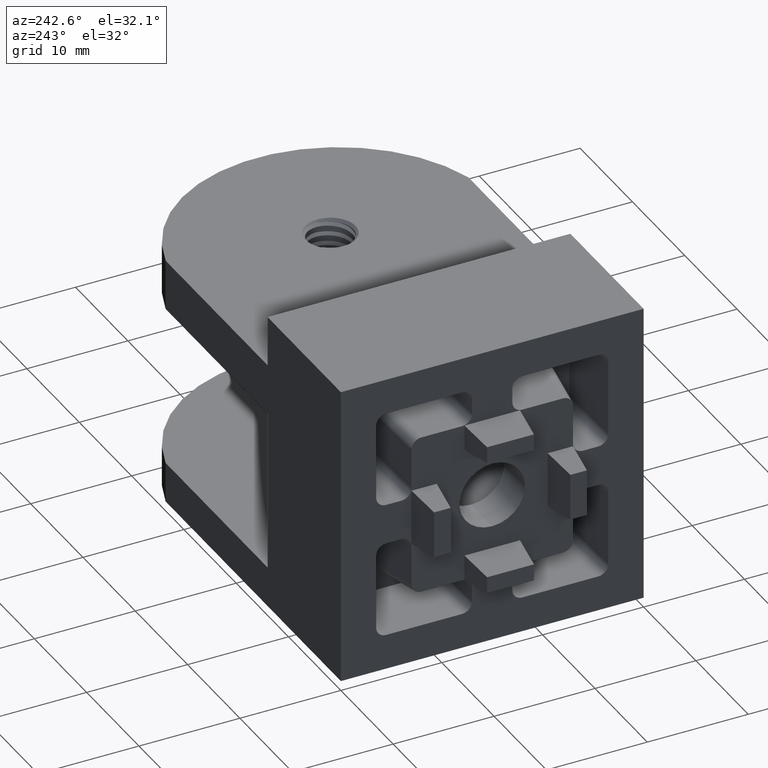
[diagram: clean part render]
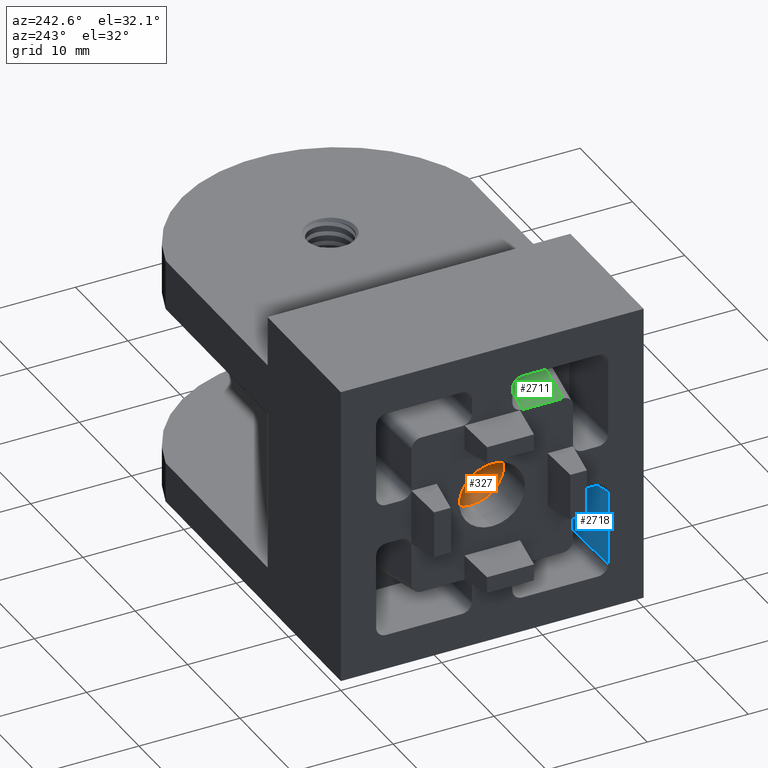
[diagram: same view with three faces highlighted in distinct colors, each labeled with its STEP entity id]
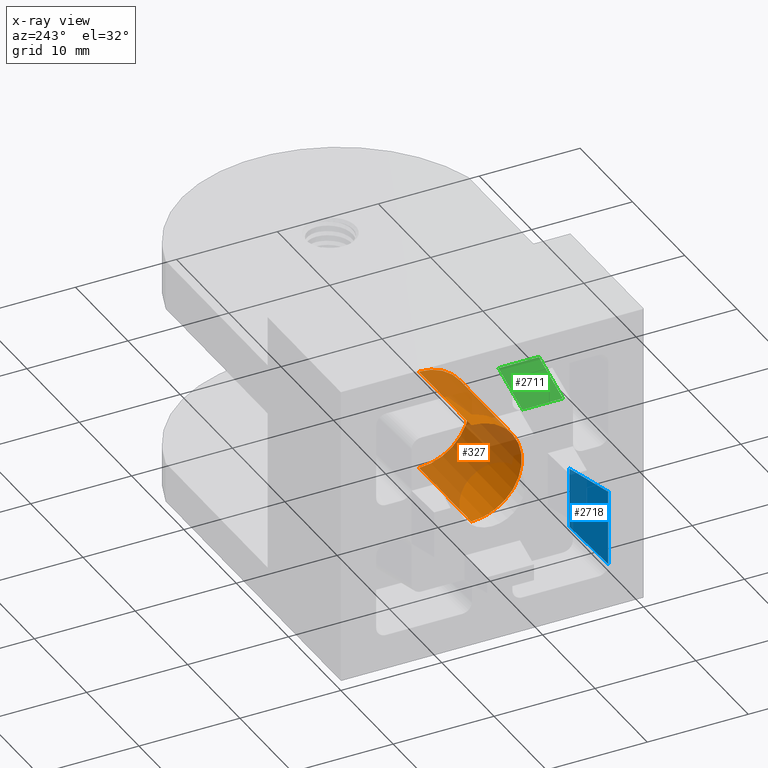
[diagram: x-ray of the same camera — body ghosted, the three highlighted faces saturated]
A machine part, auxiliary view with three faces highlighted in distinct colors.
The next image is the same camera in x-ray (body ghosted, the three faces saturated) — at least one of them is partly hidden behind the body in this view.
Their STEP definitions:

[orange] entity #327 — the highlighted cylindrical surface (partial cylindrical patch) has radius 5 mm, axis along (1, 0, 0).
#147 = VERTEX_POINT ( 'NONE', #3923 ) ;
#282 = EDGE_CURVE ( 'NONE', #1636, #147, #1318, .T. ) ;
#283 = EDGE_CURVE ( 'NONE', #1635, #1636, #1321, .T. ) ;
#285 = EDGE_CURVE ( 'NONE', #147, #1641, #1324, .T. ) ;
#286 = EDGE_CURVE ( 'NONE', #1635, #1641, #1323, .T. ) ;
#327 = ADVANCED_FACE ( 'NONE', ( #1385 ), #1386, .F. ) ;
#528 = CARTESIAN_POINT ( 'NONE',  ( 4.000000000000000000, 15.00000000000000000, -9.999999999999998200 ) ) ;
#529 = DIRECTION ( 'NONE',  ( 1.000000000000000000, 0.0000000000000000000, 0.0000000000000000000 ) ) ;
#530 = CARTESIAN_POINT ( 'NONE',  ( 4.000000000000000000, 15.00000000000000000, -15.00000000000000000 ) ) ;
#531 = DIRECTION ( 'NONE',  ( -1.000000000000000000, -0.0000000000000000000, -0.0000000000000000000 ) ) ;
#532 = DIRECTION ( 'NONE',  ( 0.0000000000000000000, 0.0000000000000000000, -1.000000000000000000 ) ) ;
#535 = CARTESIAN_POINT ( 'NONE',  ( 14.00000000000000000, 15.00000000000000000, -15.00000000000000000 ) ) ;
#536 = DIRECTION ( 'NONE',  ( 1.000000000000000000, 0.0000000000000000000, 0.0000000000000000000 ) ) ;
#537 = DIRECTION ( 'NONE',  ( 0.0000000000000000000, 0.0000000000000000000, -1.000000000000000000 ) ) ;
#538 = CARTESIAN_POINT ( 'NONE',  ( 4.000000000000000000, 15.00000000000000000, -20.00000000000000000 ) ) ;
#539 = DIRECTION ( 'NONE',  ( 1.000000000000000000, 0.0000000000000000000, 0.0000000000000000000 ) ) ;
#1318 = LINE ( 'NONE', #528, #1319 ) ;
#1319 = VECTOR ( 'NONE', #529, 1000.000000000000000 ) ;
#1321 = CIRCLE ( 'NONE', #1481, 5.000000000000000900 ) ;
#1323 = LINE ( 'NONE', #538, #1325 ) ;
#1324 = CIRCLE ( 'NONE', #1482, 5.000000000000000900 ) ;
#1325 = VECTOR ( 'NONE', #539, 1000.000000000000000 ) ;
#1385 = FACE_OUTER_BOUND ( 'NONE', #2354, .T. ) ;
#1386 = CYLINDRICAL_SURFACE ( 'NONE', #1515, 5.000000000000000900 ) ;
#1481 = AXIS2_PLACEMENT_3D ( 'NONE', #530, #531, #532 ) ;
#1482 = AXIS2_PLACEMENT_3D ( 'NONE', #535, #536, #537 ) ;
#1515 = AXIS2_PLACEMENT_3D ( 'NONE', #1995, #1996, #1997 ) ;
#1635 = VERTEX_POINT ( 'NONE', #3546 ) ;
#1636 = VERTEX_POINT ( 'NONE', #3547 ) ;
#1641 = VERTEX_POINT ( 'NONE', #3552 ) ;
#1995 = CARTESIAN_POINT ( 'NONE',  ( 4.000000000000000000, 15.00000000000000000, -15.00000000000000000 ) ) ;
#1996 = DIRECTION ( 'NONE',  ( 1.000000000000000000, 0.0000000000000000000, 0.0000000000000000000 ) ) ;
#1997 = DIRECTION ( 'NONE',  ( 0.0000000000000000000, 0.0000000000000000000, -1.000000000000000000 ) ) ;
#2354 = EDGE_LOOP ( 'NONE', ( #2478, #2475, #2472, #2479 ) ) ;
#2472 = ORIENTED_EDGE ( 'NONE', *, *, #285, .T. ) ;
#2475 = ORIENTED_EDGE ( 'NONE', *, *, #282, .T. ) ;
#2478 = ORIENTED_EDGE ( 'NONE', *, *, #283, .T. ) ;
#2479 = ORIENTED_EDGE ( 'NONE', *, *, #286, .F. ) ;
#3546 = CARTESIAN_POINT ( 'NONE',  ( 4.000000000000000000, 15.00000000000000000, -20.00000000000000000 ) ) ;
#3547 = CARTESIAN_POINT ( 'NONE',  ( 4.000000000000000000, 15.00000000000000000, -9.999999999999998200 ) ) ;
#3552 = CARTESIAN_POINT ( 'NONE',  ( 14.00000000000000000, 15.00000000000000000, -20.00000000000000000 ) ) ;
#3923 = CARTESIAN_POINT ( 'NONE',  ( 14.00000000000000000, 14.99999999897448300, -9.999999999999998200 ) ) ;

[blue] entity #2718 — the highlighted planar face has unit normal (0.1219, -0.9925, 0).
#73 = CARTESIAN_POINT ( 'NONE',  ( -0.08550942498617868100, 3.489500762877348400, -25.51795308598991600 ) ) ;
#74 = DIRECTION ( 'NONE',  ( 0.9852565360153691100, 0.1209742911510452000, 0.1209742911510454100 ) ) ;
#89 = CARTESIAN_POINT ( 'NONE',  ( -0.08550942426805593900, 3.489500763247802300, -17.98204691410244700 ) ) ;
#90 = DIRECTION ( 'NONE',  ( -0.9852565360153690000, -0.1209742911510454000, 0.1209742911510458300 ) ) ;
#125 = CARTESIAN_POINT ( 'NONE',  ( 6.000000000000000000, 4.236707365000000900, -21.75000000000000000 ) ) ;
#127 = VERTEX_POINT ( 'NONE', #1643 ) ;
#145 = VERTEX_POINT ( 'NONE', #3910 ) ;
#199 = VERTEX_POINT ( 'NONE', #382 ) ;
#206 = VERTEX_POINT ( 'NONE', #389 ) ;
#227 = FACE_OUTER_BOUND ( 'NONE', #2099, .T. ) ;
#382 = CARTESIAN_POINT ( 'NONE',  ( 2.915283642203510300E-010, 3.500000002805486500, -17.99254615153066100 ) ) ;
#389 = CARTESIAN_POINT ( 'NONE',  ( 5.999999999985098100, 4.236707365367766300, -24.77074648313328700 ) ) ;
#709 = PLANE ( 'NONE',  #3675 ) ;
#710 = CARTESIAN_POINT ( 'NONE',  ( 0.0000000000000000000, 3.500000000000000000, -25.55254329499999600 ) ) ;
#711 = DIRECTION ( 'NONE',  ( 0.1218693433371205000, -0.9925461516496747500, 0.0000000000000000000 ) ) ;
#712 = DIRECTION ( 'NONE',  ( 0.9925461516496747500, 0.1218693433371205000, 0.0000000000000000000 ) ) ;
#1455 = EDGE_CURVE ( 'NONE', #127, #206, #3287, .T. ) ;
#1460 = EDGE_CURVE ( 'NONE', #145, #199, #3291, .T. ) ;
#1472 = EDGE_CURVE ( 'NONE', #206, #145, #3303, .T. ) ;
#1643 = CARTESIAN_POINT ( 'NONE',  ( 3.000645725273996800E-010, 3.500000002594825200, -25.50745384847143200 ) ) ;
#2059 = EDGE_CURVE ( 'NONE', #127, #199, #3766, .T. ) ;
#2099 = EDGE_LOOP ( 'NONE', ( #2193, #2194, #2195, #2196 ) ) ;
#2193 = ORIENTED_EDGE ( 'NONE', *, *, #1460, .F. ) ;
#2194 = ORIENTED_EDGE ( 'NONE', *, *, #1472, .F. ) ;
#2195 = ORIENTED_EDGE ( 'NONE', *, *, #1455, .F. ) ;
#2196 = ORIENTED_EDGE ( 'NONE', *, *, #2059, .T. ) ;
#2718 = ADVANCED_FACE ( 'NONE', ( #227 ), #709, .F. ) ;
#2848 = CARTESIAN_POINT ( 'NONE',  ( 0.0000000000000000000, 3.500000010000000800, -15.00000000000000000 ) ) ;
#2849 = DIRECTION ( 'NONE',  ( -0.0000000000000000000, -0.0000000000000000000, 1.000000000000000000 ) ) ;
#3287 = LINE ( 'NONE', #73, #3288 ) ;
#3288 = VECTOR ( 'NONE', #74, 1000.000000000000000 ) ;
#3291 = LINE ( 'NONE', #89, #3292 ) ;
#3292 = VECTOR ( 'NONE', #90, 1000.000000000000100 ) ;
#3303 = LINE ( 'NONE', #125, #3304 ) ;
#3304 = VECTOR ( 'NONE', #3483, 1000.000000000000000 ) ;
#3483 = DIRECTION ( 'NONE',  ( 0.0000000000000000000, 0.0000000000000000000, 1.000000000000000000 ) ) ;
#3675 = AXIS2_PLACEMENT_3D ( 'NONE', #710, #711, #712 ) ;
#3766 = LINE ( 'NONE', #2848, #3767 ) ;
#3767 = VECTOR ( 'NONE', #2849, 1000.000000000000000 ) ;
#3910 = CARTESIAN_POINT ( 'NONE',  ( 5.999999999976561900, 4.236707365578429800, -18.72925351686880900 ) ) ;

[green] entity #2711 — the highlighted planar face has unit normal (0.1219, 0, -0.9925).
#220 = FACE_OUTER_BOUND ( 'NONE', #2084, .T. ) ;
#681 = PLANE ( 'NONE',  #3668 ) ;
#682 = CARTESIAN_POINT ( 'NONE',  ( 6.000000000000000000, 7.227329096000000100, -6.263292635000000900 ) ) ;
#683 = DIRECTION ( 'NONE',  ( 0.1218693433371202800, 0.0000000000000000000, -0.9925461516496747500 ) ) ;
#684 = DIRECTION ( 'NONE',  ( -0.9925461516496747500, 0.0000000000000000000, -0.1218693433371202800 ) ) ;
#1610 = VERTEX_POINT ( 'NONE', #3522 ) ;
#1613 = VERTEX_POINT ( 'NONE', #3525 ) ;
#1620 = VERTEX_POINT ( 'NONE', #3532 ) ;
#1623 = VERTEX_POINT ( 'NONE', #3535 ) ;
#2037 = EDGE_CURVE ( 'NONE', #1623, #1620, #3732, .T. ) ;
#2039 = EDGE_CURVE ( 'NONE', #1610, #1613, #3734, .T. ) ;
#2043 = EDGE_CURVE ( 'NONE', #1620, #1610, #3738, .T. ) ;
#2052 = EDGE_CURVE ( 'NONE', #1623, #1613, #3752, .T. ) ;
#2084 = EDGE_LOOP ( 'NONE', ( #2146, #2147, #2150, #2148 ) ) ;
#2146 = ORIENTED_EDGE ( 'NONE', *, *, #2037, .F. ) ;
#2147 = ORIENTED_EDGE ( 'NONE', *, *, #2052, .T. ) ;
#2148 = ORIENTED_EDGE ( 'NONE', *, *, #2043, .F. ) ;
#2150 = ORIENTED_EDGE ( 'NONE', *, *, #2039, .F. ) ;
#2711 = ADVANCED_FACE ( 'NONE', ( #220 ), #681, .F. ) ;
#2794 = CARTESIAN_POINT ( 'NONE',  ( -0.08550942506113054500, 12.01795308537027300, -7.010499237131858400 ) ) ;
#2795 = DIRECTION ( 'NONE',  ( 0.9852565360153691100, -0.1209742911510454700, 0.1209742911510453100 ) ) ;
#2800 = CARTESIAN_POINT ( 'NONE',  ( 6.085509425115528600, 7.245339549579439300, -6.252793397361462400 ) ) ;
#2801 = DIRECTION ( 'NONE',  ( -0.9852565360153690000, 0.1209742911510455200, -0.1209742911510455900 ) ) ;
#2812 = CARTESIAN_POINT ( 'NONE',  ( 6.000000000000000000, 9.631646317500001300, -6.263292635000000900 ) ) ;
#2813 = DIRECTION ( 'NONE',  ( -0.0000000000000000000, -1.000000000000000000, -0.0000000000000000000 ) ) ;
#2834 = CARTESIAN_POINT ( 'NONE',  ( 0.0000000000000000000, 15.00000000000000000, -6.999999990000000900 ) ) ;
#2835 = DIRECTION ( 'NONE',  ( -0.0000000000000000000, -1.000000000000000000, -0.0000000000000000000 ) ) ;
#3522 = CARTESIAN_POINT ( 'NONE',  ( 5.999999999987218200, 7.255838786542270200, -6.263292634684548300 ) ) ;
#3525 = CARTESIAN_POINT ( 'NONE',  ( 3.021842758660353600E-010, 7.992546151880412200, -6.999999997457492500 ) ) ;
#3532 = CARTESIAN_POINT ( 'NONE',  ( 5.999999999985098100, 11.27074648281886500, -6.263292634632235500 ) ) ;
#3535 = CARTESIAN_POINT ( 'NONE',  ( 3.000646301256400900E-010, 12.00745384815700800, -6.999999997405177900 ) ) ;
#3668 = AXIS2_PLACEMENT_3D ( 'NONE', #682, #683, #684 ) ;
#3732 = LINE ( 'NONE', #2794, #3733 ) ;
#3733 = VECTOR ( 'NONE', #2795, 1000.000000000000000 ) ;
#3734 = LINE ( 'NONE', #2800, #3735 ) ;
#3735 = VECTOR ( 'NONE', #2801, 1000.000000000000100 ) ;
#3738 = LINE ( 'NONE', #2812, #3739 ) ;
#3739 = VECTOR ( 'NONE', #2813, 1000.000000000000000 ) ;
#3752 = LINE ( 'NONE', #2834, #3753 ) ;
#3753 = VECTOR ( 'NONE', #2835, 1000.000000000000000 ) ;